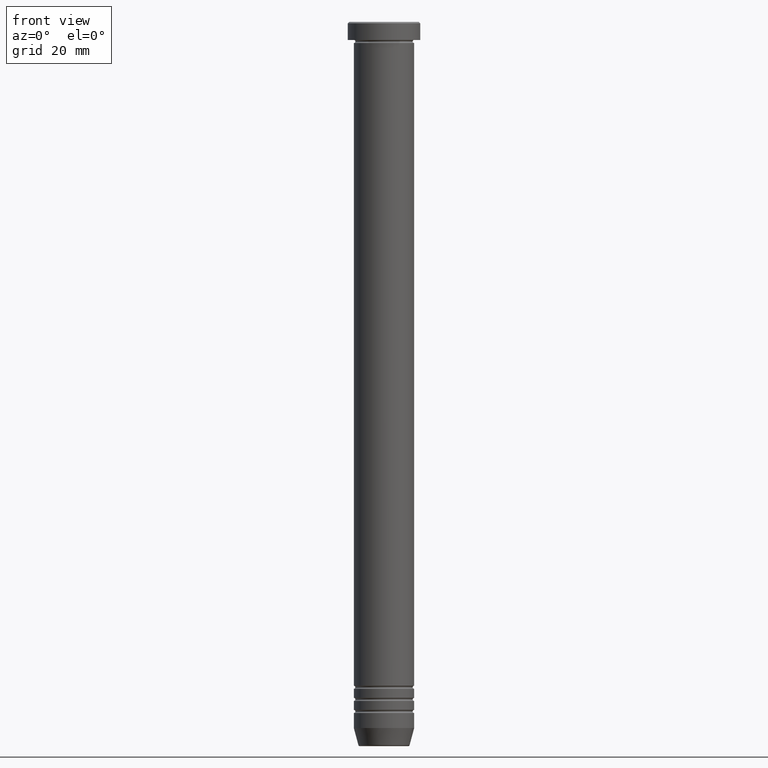
[diagram: clean part render]
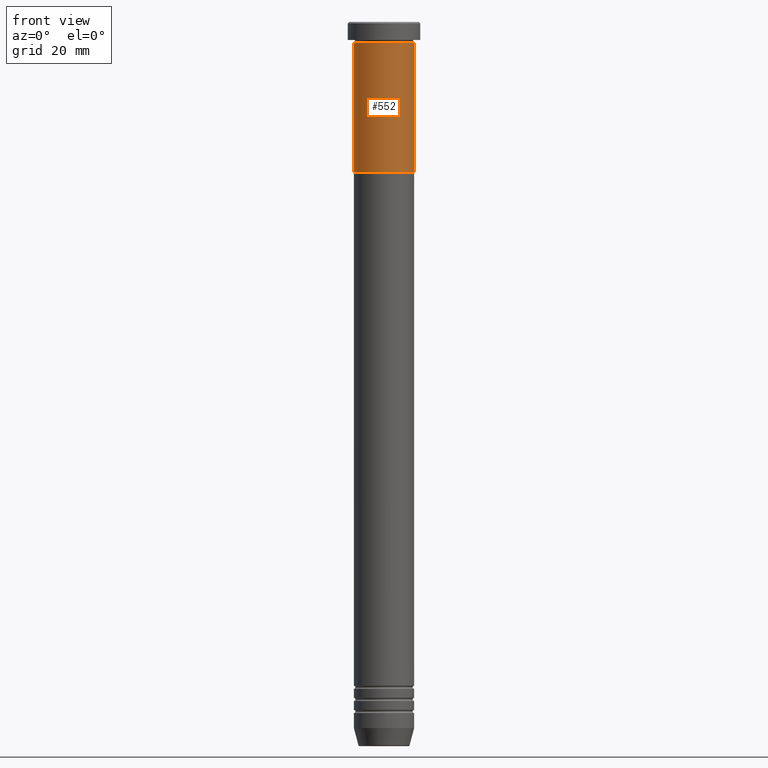
[diagram: same view with one face highlighted and labeled with its STEP entity id]
A machine part, front view. The second image highlights one B-rep face of the part: STEP entity #552.
In plain terms, the highlighted cylindrical surface (edge-blend (fillet) strip) has radius 10 mm, axis along (-0, -0, 1).
Its self-contained STEP definition (entity closure, byte-faithful):
#31 = CYLINDRICAL_SURFACE ( 'NONE', #220, 10.00000000000000000 ) ;
#33 = ORIENTED_EDGE ( 'NONE', *, *, #651, .F. ) ;
#43 = ORIENTED_EDGE ( 'NONE', *, *, #849, .T. ) ;
#76 = DIRECTION ( 'NONE',  ( 1.000000000000000000, 0.000000000000000000, 0.000000000000000000 ) ) ;
#79 = DIRECTION ( 'NONE',  ( -0.000000000000000000, -0.000000000000000000, 1.000000000000000000 ) ) ;
#155 = LINE ( 'NONE', #981, #1021 ) ;
#220 = AXIS2_PLACEMENT_3D ( 'NONE', #689, #283, #609 ) ;
#283 = DIRECTION ( 'NONE',  ( -0.000000000000000000, -0.000000000000000000, 1.000000000000000000 ) ) ;
#305 = CIRCLE ( 'NONE', #339, 10.00000000000000000 ) ;
#339 = AXIS2_PLACEMENT_3D ( 'NONE', #484, #79, #409 ) ;
#374 = ORIENTED_EDGE ( 'NONE', *, *, #414, .T. ) ;
#402 = VECTOR ( 'NONE', #468, 1000.000000000000000 ) ;
#405 = DIRECTION ( 'NONE',  ( -0.000000000000000000, -0.000000000000000000, 1.000000000000000000 ) ) ;
#409 = DIRECTION ( 'NONE',  ( 1.000000000000000000, 0.000000000000000000, 0.000000000000000000 ) ) ;
#414 = EDGE_CURVE ( 'NONE', #662, #503, #610, .T. ) ;
#431 = CARTESIAN_POINT ( 'NONE',  ( -10.00000000000000000, 1.224646799147353256E-15, -6.999999999999999112 ) ) ;
#441 = CARTESIAN_POINT ( 'NONE',  ( 10.00000000000000000, 0.000000000000000000, -6.999999999999999112 ) ) ;
#468 = DIRECTION ( 'NONE',  ( -0.000000000000000000, -0.000000000000000000, 1.000000000000000000 ) ) ;
#484 = CARTESIAN_POINT ( 'NONE',  ( 0.000000000000000000, 0.000000000000000000, -6.999999999999999112 ) ) ;
#491 = DIRECTION ( 'NONE',  ( -0.000000000000000000, -0.000000000000000000, 1.000000000000000000 ) ) ;
#503 = VERTEX_POINT ( 'NONE', #603 ) ;
#552 = ADVANCED_FACE ( 'NONE', ( #940 ), #31, .T. ) ;
#584 = EDGE_LOOP ( 'NONE', ( #33, #374, #43, #892 ) ) ;
#603 = CARTESIAN_POINT ( 'NONE',  ( 10.00000000000000000, 0.000000000000000000, -50.00000000000000000 ) ) ;
#609 = DIRECTION ( 'NONE',  ( 1.000000000000000000, 0.000000000000000000, 0.000000000000000000 ) ) ;
#610 = CIRCLE ( 'NONE', #957, 10.00000000000000000 ) ;
#651 = EDGE_CURVE ( 'NONE', #662, #918, #794, .T. ) ;
#662 = VERTEX_POINT ( 'NONE', #803 ) ;
#689 = CARTESIAN_POINT ( 'NONE',  ( 0.000000000000000000, 0.000000000000000000, 0.000000000000000000 ) ) ;
#786 = EDGE_CURVE ( 'NONE', #918, #902, #305, .T. ) ;
#794 = LINE ( 'NONE', #964, #402 ) ;
#803 = CARTESIAN_POINT ( 'NONE',  ( -10.00000000000000000, 1.224646799147353256E-15, -50.00000000000000000 ) ) ;
#849 = EDGE_CURVE ( 'NONE', #503, #902, #155, .T. ) ;
#892 = ORIENTED_EDGE ( 'NONE', *, *, #786, .F. ) ;
#902 = VERTEX_POINT ( 'NONE', #441 ) ;
#918 = VERTEX_POINT ( 'NONE', #431 ) ;
#940 = FACE_OUTER_BOUND ( 'NONE', #584, .T. ) ;
#957 = AXIS2_PLACEMENT_3D ( 'NONE', #995, #491, #76 ) ;
#964 = CARTESIAN_POINT ( 'NONE',  ( -10.00000000000000000, 1.224646799147353256E-15, 0.000000000000000000 ) ) ;
#981 = CARTESIAN_POINT ( 'NONE',  ( 10.00000000000000000, 0.000000000000000000, 0.000000000000000000 ) ) ;
#995 = CARTESIAN_POINT ( 'NONE',  ( 0.000000000000000000, 0.000000000000000000, -50.00000000000000000 ) ) ;
#1021 = VECTOR ( 'NONE', #405, 1000.000000000000000 ) ;